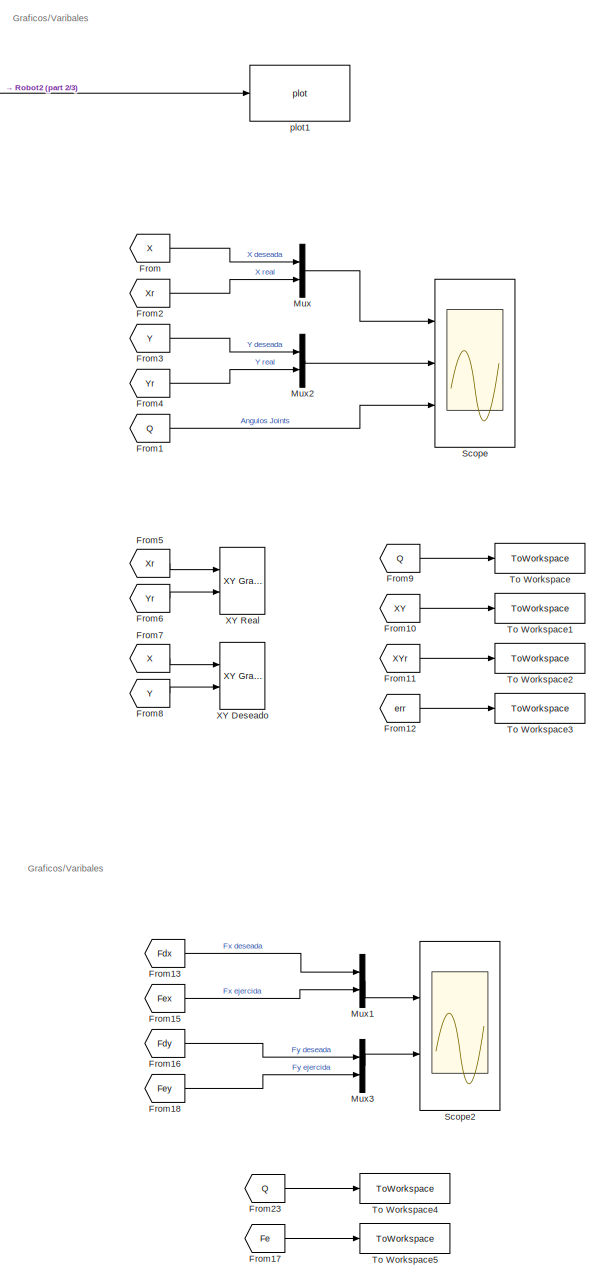
[diagram: root canvas - part 1/3, right side, full height]
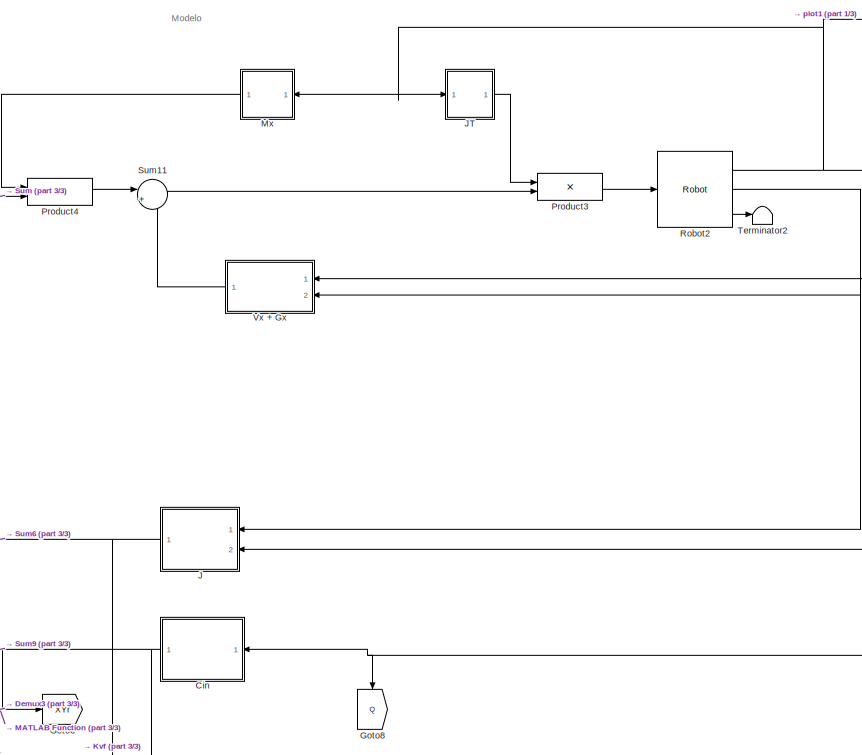
[diagram: root canvas - part 2/3, top center region]
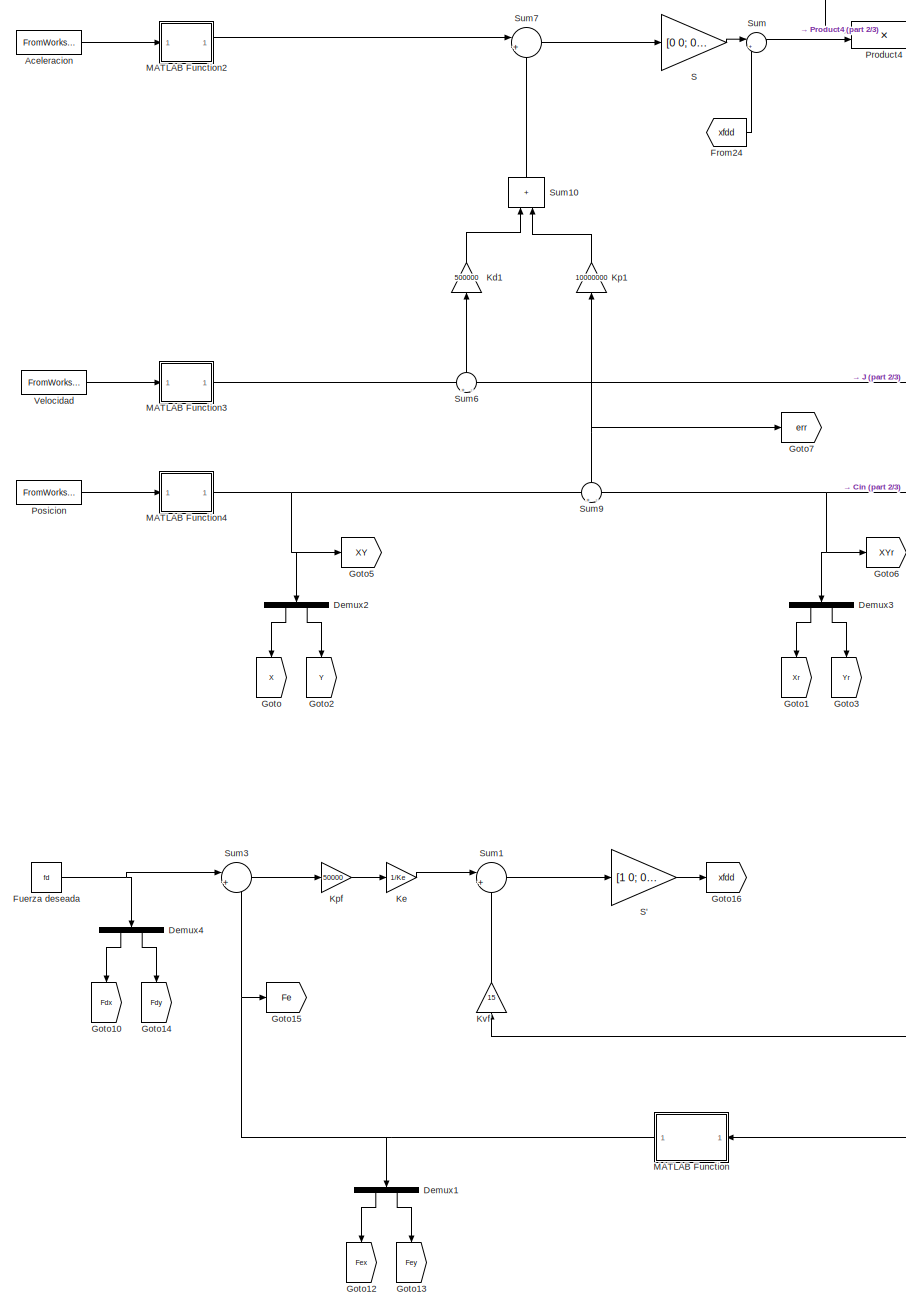
[diagram: root canvas - part 3/3, left side, full height]
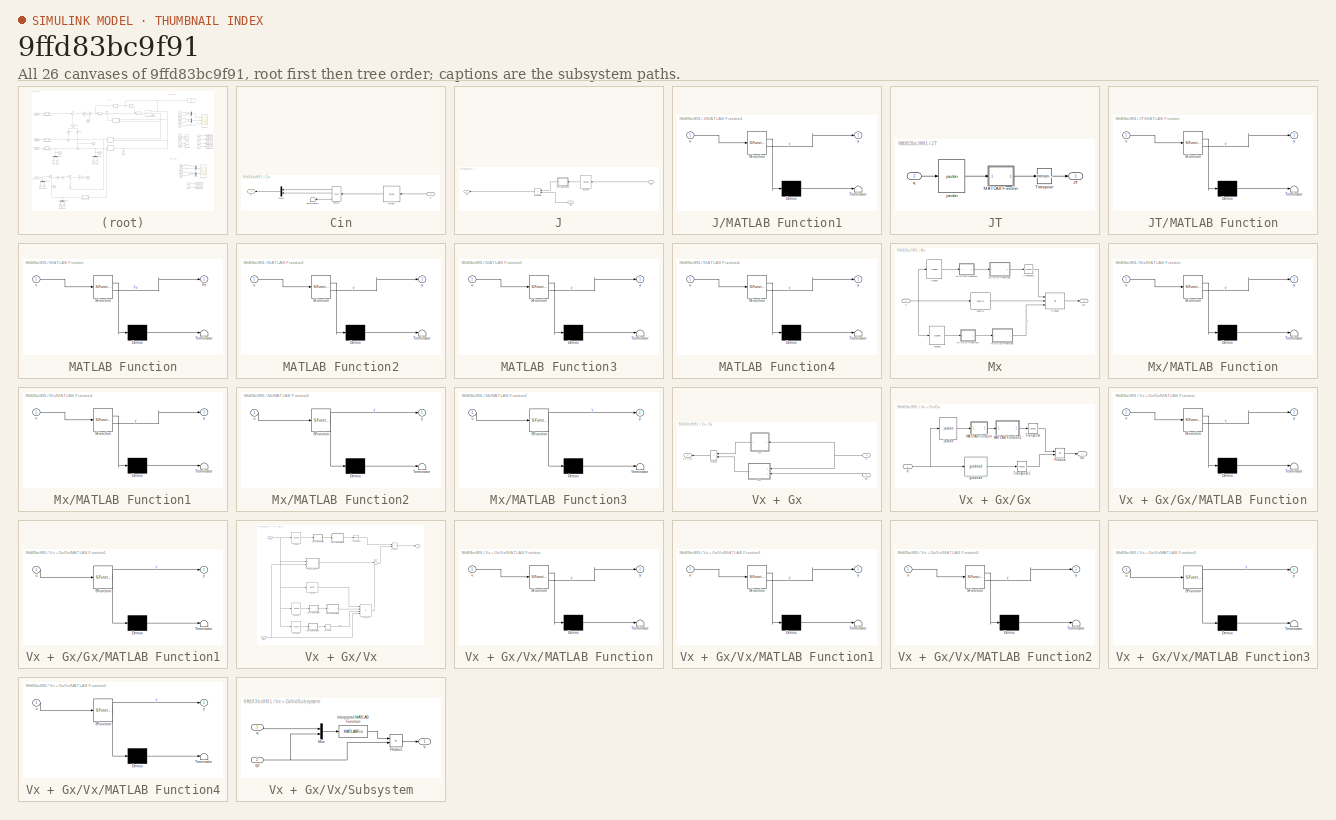
[diagram: thumbnail index - all 26 canvases of the model, root first then tree order]
MODEL slx_9ffd83bc9f91
KIND model
CONFIG AbsTol = auto
CONFIG EnableMultiTasking = off
CONFIG FixedStep = auto
CONFIG MaxStep = auto
CONFIG MinStep = auto
CONFIG RelTol = 1e-3
CONFIG SampleTimeConstraint = Unconstrained
CONFIG Solver = VariableStepAuto
CONFIG SolverName = VariableStepAuto
CONFIG StartTime = 0.0
CONFIG StopTime = 10
BLOCK [FromWorkspace] Aceleracion
  OutputAfterFinalValue = Holding final value
  SampleTime = -1
  VariableName = acc
BLOCK [SubSystem] Cin
  NameLocation = top
  Ports = [1, 1]
  RequestExecContextInheritance = off
BLOCK [Mux] Cin/Mux1
  DisplayOption = bar
  Inputs = 2
  NameLocation = top
  Ports = [2, 1]
BLOCK [Reference] Cin/T2xyz1  REF=roblocks/Toolbox/T2xyz  (lib defined in mdl_2a292b13c81b, mdl_69400f8cfe22, +12 more)
  NameLocation = top
  Ports = [1, 3]
  SourceBlock = roblocks/Toolbox/T2xyz
BLOCK [Terminator] Cin/Terminator3
  NameLocation = top
BLOCK [Reference] Cin/fkine1  REF=roblocks/Arm/fkine  (lib defined in mdl_2a292b13c81b, mdl_69400f8cfe22, +12 more)
  NameLocation = top
  Ports = [1, 1]
  SourceBlock = roblocks/Arm/fkine
BLOCK [Inport] Cin/q
  NameLocation = top
BLOCK [Outport] Cin/x
BLOCK [Demux] Demux1
  NameLocation = left
  Outputs = 2
  Ports = [1, 2]
BLOCK [Demux] Demux2
  NameLocation = left
  Outputs = 2
  Ports = [1, 2]
BLOCK [Demux] Demux3
  NameLocation = left
  Outputs = 2
  Ports = [1, 2]
BLOCK [Demux] Demux4
  NameLocation = left
  Outputs = 2
  Ports = [1, 2]
BLOCK [From] From
  GotoTag = X
BLOCK [From] From1
  GotoTag = Q
BLOCK [From] From10
  GotoTag = XY
BLOCK [From] From11
  GotoTag = XYr
BLOCK [From] From12
  GotoTag = err
BLOCK [From] From13
  GotoTag = Fdx
BLOCK [From] From15
  GotoTag = Fex
BLOCK [From] From16
  GotoTag = Fdy
BLOCK [From] From17
  GotoTag = Fe
BLOCK [From] From18
  GotoTag = Fey
BLOCK [From] From2
  GotoTag = Xr
BLOCK [From] From23
  GotoTag = Q
BLOCK [From] From24
  GotoTag = xfdd
BLOCK [From] From3
  GotoTag = Y
BLOCK [From] From4
  GotoTag = Yr
BLOCK [From] From5
  GotoTag = Xr
BLOCK [From] From6
  GotoTag = Yr
BLOCK [From] From7
  GotoTag = X
BLOCK [From] From8
  GotoTag = Y
BLOCK [From] From9
  GotoTag = Q
BLOCK [Constant] Fuerza deseada
  Value = fd
BLOCK [Goto] Goto
  GotoTag = X
  IconDisplay = Tag and signal name
  NameLocation = left
BLOCK [Goto] Goto1
  GotoTag = Xr
  IconDisplay = Tag and signal name
  NameLocation = left
BLOCK [Goto] Goto10
  GotoTag = Fdx
  IconDisplay = Tag and signal name
  NameLocation = left
BLOCK [Goto] Goto12
  GotoTag = Fex
  IconDisplay = Tag and signal name
  NameLocation = left
BLOCK [Goto] Goto13
  GotoTag = Fey
  IconDisplay = Tag and signal name
  NameLocation = left
BLOCK [Goto] Goto14
  GotoTag = Fdy
  IconDisplay = Tag and signal name
  NameLocation = left
BLOCK [Goto] Goto15
  GotoTag = Fe
BLOCK [Goto] Goto16
  GotoTag = xfdd
BLOCK [Goto] Goto2
  GotoTag = Y
  IconDisplay = Tag and signal name
  NameLocation = left
BLOCK [Goto] Goto3
  GotoTag = Yr
  IconDisplay = Tag and signal name
  NameLocation = left
BLOCK [Goto] Goto5
  GotoTag = XY
BLOCK [Goto] Goto6
  GotoTag = XYr
  IconDisplay = Tag and signal name
BLOCK [Goto] Goto7
  GotoTag = err
  IconDisplay = Tag and signal name
BLOCK [Goto] Goto8
  GotoTag = Q
  NameLocation = left
BLOCK [SubSystem] J
  NameLocation = top
  Ports = [2, 1]
  RequestExecContextInheritance = off
BLOCK [SubSystem] J/MATLAB Function1
  ErrorFcn = Stateflow.Translate.translate
  NameLocation = top
  PermitHierarchicalResolution = ExplicitOnly
  Ports = [1, 1]
  RequestExecContextInheritance = off
  SFBlockType = MATLAB Function
  TreatAsAtomicUnit = on
BLOCK [Demux] J/MATLAB Function1/ Demux 
  Outputs = 1
  Ports = [1, 1]
BLOCK [S-Function] J/MATLAB Function1/ SFunction 
  EnableBusSupport = on
  FunctionName = sf_sfun
  PortCounts = [1 2]
  Ports = [1, 2]
  SFcnIsStateOwnerBlock = off
  SFunctionDeploymentMode = off
  Tag = Stateflow S-Function 27
BLOCK [Terminator] J/MATLAB Function1/ Terminator 
BLOCK [Inport] J/MATLAB Function1/u
BLOCK [Outport] J/MATLAB Function1/y
BLOCK [Product] J/Product5
  Multiplication = Matrix(*)
  NameLocation = top
  Ports = [2, 1]
BLOCK [Reference] J/jacobn1  REF=roblocks/Arm/jacobn  (lib defined in mdl_2a292b13c81b, mdl_69400f8cfe22, +12 more)
  NameLocation = top
  Ports = [1, 1]
  SourceBlock = roblocks/Arm/jacobn
BLOCK [Inport] J/q
  NameLocation = top
  Port = 2
BLOCK [Inport] J/qd
  NameLocation = top
BLOCK [Outport] J/xd
BLOCK [SubSystem] JT
  Ports = [1, 1]
  RequestExecContextInheritance = off
BLOCK [Outport] JT/JT
BLOCK [SubSystem] JT/MATLAB Function
  ErrorFcn = Stateflow.Translate.translate
  PermitHierarchicalResolution = ExplicitOnly
  Ports = [1, 1]
  RequestExecContextInheritance = off
  SFBlockType = MATLAB Function
  TreatAsAtomicUnit = on
BLOCK [Demux] JT/MATLAB Function/ Demux 
  Outputs = 1
  Ports = [1, 1]
BLOCK [S-Function] JT/MATLAB Function/ SFunction 
  EnableBusSupport = on
  FunctionName = sf_sfun
  PortCounts = [1 2]
  Ports = [1, 2]
  SFcnIsStateOwnerBlock = off
  SFunctionDeploymentMode = off
  Tag = Stateflow S-Function 17
BLOCK [Terminator] JT/MATLAB Function/ Terminator 
BLOCK [Inport] JT/MATLAB Function/u
BLOCK [Outport] JT/MATLAB Function/y
BLOCK [Math] JT/Transpose
  Operator = transpose
  Ports = [1, 1]
BLOCK [Reference] JT/jacobn  REF=roblocks/Arm/jacobn  (lib defined in mdl_2a292b13c81b, mdl_69400f8cfe22, +12 more)
  Ports = [1, 1]
  SourceBlock = roblocks/Arm/jacobn
BLOCK [Inport] JT/q
BLOCK [Gain] Kd1
  Gain = 500000
  Multiplication = Matrix(K*u)
  NameLocation = right
  OutDataTypeStr = Inherit: Same as input
  ParamDataTypeStr = Inherit: Same as input
  SaturateOnIntegerOverflow = on
BLOCK [Gain] Ke
  Gain = 1/Ke
  Multiplication = Matrix(K*u)
  OutDataTypeStr = Inherit: Same as input
  ParamDataTypeStr = Inherit: Same as input
  SaturateOnIntegerOverflow = on
BLOCK [Gain] Kp1
  Gain = 10000000
  Multiplication = Matrix(K*u)
  NameLocation = right
  OutDataTypeStr = Inherit: Same as input
  ParamDataTypeStr = Inherit: Same as input
  SaturateOnIntegerOverflow = on
BLOCK [Gain] Kpf
  Gain = 50000
  OutDataTypeStr = Inherit: Same as input
  ParamDataTypeStr = Inherit: Same as input
  SaturateOnIntegerOverflow = on
BLOCK [Gain] Kvf
  Gain = 15
  NameLocation = right
  OutDataTypeStr = Inherit: Same as input
  ParamDataTypeStr = Inherit: Same as input
  SaturateOnIntegerOverflow = on
BLOCK [SubSystem] MATLAB Function
  ErrorFcn = Stateflow.Translate.translate
  NameLocation = top
  PermitHierarchicalResolution = ExplicitOnly
  Ports = [1, 1]
  RequestExecContextInheritance = off
  SFBlockType = MATLAB Function
  TreatAsAtomicUnit = on
BLOCK [Demux] MATLAB Function/ Demux 
  Outputs = 1
  Ports = [1, 1]
BLOCK [S-Function] MATLAB Function/ SFunction 
  EnableBusSupport = on
  FunctionName = sf_sfun
  PortCounts = [1 2]
  Ports = [1, 2]
  SFcnIsStateOwnerBlock = off
  SFunctionDeploymentMode = off
  Tag = Stateflow S-Function 3
BLOCK [Terminator] MATLAB Function/ Terminator 
BLOCK [Outport] MATLAB Function/Fe
BLOCK [Inport] MATLAB Function/x
BLOCK [SubSystem] MATLAB Function2
  ErrorFcn = Stateflow.Translate.translate
  PermitHierarchicalResolution = ExplicitOnly
  Ports = [1, 1]
  RequestExecContextInheritance = off
  SFBlockType = MATLAB Function
  TreatAsAtomicUnit = on
BLOCK [Demux] MATLAB Function2/ Demux 
  Outputs = 1
  Ports = [1, 1]
BLOCK [S-Function] MATLAB Function2/ SFunction 
  EnableBusSupport = on
  FunctionName = sf_sfun
  PortCounts = [1 2]
  Ports = [1, 2]
  SFcnIsStateOwnerBlock = off
  SFunctionDeploymentMode = off
  Tag = Stateflow S-Function 15
BLOCK [Terminator] MATLAB Function2/ Terminator 
BLOCK [Inport] MATLAB Function2/u
BLOCK [Outport] MATLAB Function2/y
BLOCK [SubSystem] MATLAB Function3
  ErrorFcn = Stateflow.Translate.translate
  PermitHierarchicalResolution = ExplicitOnly
  Ports = [1, 1]
  RequestExecContextInheritance = off
  SFBlockType = MATLAB Function
  TreatAsAtomicUnit = on
BLOCK [Demux] MATLAB Function3/ Demux 
  Outputs = 1
  Ports = [1, 1]
BLOCK [S-Function] MATLAB Function3/ SFunction 
  EnableBusSupport = on
  FunctionName = sf_sfun
  PortCounts = [1 2]
  Ports = [1, 2]
  SFcnIsStateOwnerBlock = off
  SFunctionDeploymentMode = off
  Tag = Stateflow S-Function 18
BLOCK [Terminator] MATLAB Function3/ Terminator 
BLOCK [Inport] MATLAB Function3/u
BLOCK [Outport] MATLAB Function3/y
BLOCK [SubSystem] MATLAB Function4
  ErrorFcn = Stateflow.Translate.translate
  PermitHierarchicalResolution = ExplicitOnly
  Ports = [1, 1]
  RequestExecContextInheritance = off
  SFBlockType = MATLAB Function
  TreatAsAtomicUnit = on
BLOCK [Demux] MATLAB Function4/ Demux 
  Outputs = 1
  Ports = [1, 1]
BLOCK [S-Function] MATLAB Function4/ SFunction 
  EnableBusSupport = on
  FunctionName = sf_sfun
  PortCounts = [1 2]
  Ports = [1, 2]
  SFcnIsStateOwnerBlock = off
  SFunctionDeploymentMode = off
  Tag = Stateflow S-Function 19
BLOCK [Terminator] MATLAB Function4/ Terminator 
BLOCK [Inport] MATLAB Function4/u
BLOCK [Outport] MATLAB Function4/y
BLOCK [Mux] Mux
  DisplayOption = bar
  Inputs = 2
  Ports = [2, 1]
BLOCK [Mux] Mux1
  DisplayOption = bar
  Inputs = 2
  Ports = [2, 1]
BLOCK [Mux] Mux2
  DisplayOption = bar
  Inputs = 2
  Ports = [2, 1]
BLOCK [Mux] Mux3
  DisplayOption = bar
  Inputs = 2
  Ports = [2, 1]
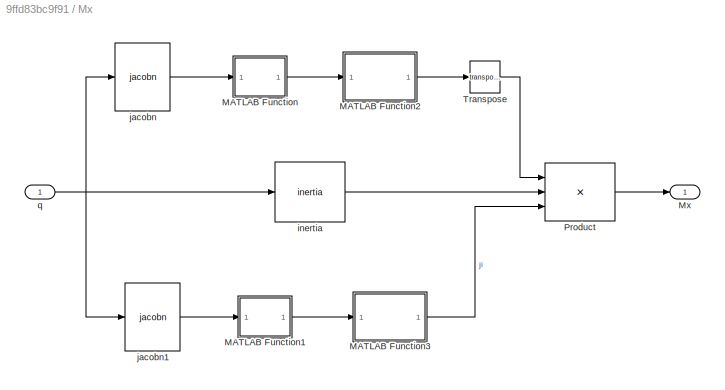
BLOCK [SubSystem] Mx
  NameLocation = top
  Ports = [1, 1]
  RequestExecContextInheritance = off
BLOCK [SubSystem] Mx/MATLAB Function
  ErrorFcn = Stateflow.Translate.translate
  PermitHierarchicalResolution = ExplicitOnly
  Ports = [1, 1]
  RequestExecContextInheritance = off
  SFBlockType = MATLAB Function
  TreatAsAtomicUnit = on
BLOCK [Demux] Mx/MATLAB Function/ Demux 
  Outputs = 1
  Ports = [1, 1]
BLOCK [S-Function] Mx/MATLAB Function/ SFunction 
  EnableBusSupport = on
  FunctionName = sf_sfun
  PortCounts = [1 2]
  Ports = [1, 2]
  SFcnIsStateOwnerBlock = off
  SFunctionDeploymentMode = off
  Tag = Stateflow S-Function 20
BLOCK [Terminator] Mx/MATLAB Function/ Terminator 
BLOCK [Inport] Mx/MATLAB Function/u
BLOCK [Outport] Mx/MATLAB Function/y
BLOCK [SubSystem] Mx/MATLAB Function1
  ErrorFcn = Stateflow.Translate.translate
  PermitHierarchicalResolution = ExplicitOnly
  Ports = [1, 1]
  RequestExecContextInheritance = off
  SFBlockType = MATLAB Function
  TreatAsAtomicUnit = on
BLOCK [Demux] Mx/MATLAB Function1/ Demux 
  Outputs = 1
  Ports = [1, 1]
BLOCK [S-Function] Mx/MATLAB Function1/ SFunction 
  EnableBusSupport = on
  FunctionName = sf_sfun
  PortCounts = [1 2]
  Ports = [1, 2]
  SFcnIsStateOwnerBlock = off
  SFunctionDeploymentMode = off
  Tag = Stateflow S-Function 21
BLOCK [Terminator] Mx/MATLAB Function1/ Terminator 
BLOCK [Inport] Mx/MATLAB Function1/u
BLOCK [Outport] Mx/MATLAB Function1/y
BLOCK [SubSystem] Mx/MATLAB Function2
  ErrorFcn = Stateflow.Translate.translate
  PermitHierarchicalResolution = ExplicitOnly
  Ports = [1, 1]
  RequestExecContextInheritance = off
  SFBlockType = MATLAB Function
  TreatAsAtomicUnit = on
BLOCK [Demux] Mx/MATLAB Function2/ Demux 
  Outputs = 1
  Ports = [1, 1]
BLOCK [S-Function] Mx/MATLAB Function2/ SFunction 
  EnableBusSupport = on
  FunctionName = sf_sfun
  PortCounts = [1 2]
  Ports = [1, 2]
  SFcnIsStateOwnerBlock = off
  SFunctionDeploymentMode = off
  Tag = Stateflow S-Function 22
BLOCK [Terminator] Mx/MATLAB Function2/ Terminator 
BLOCK [Inport] Mx/MATLAB Function2/u
BLOCK [Outport] Mx/MATLAB Function2/y
BLOCK [SubSystem] Mx/MATLAB Function3
  ErrorFcn = Stateflow.Translate.translate
  PermitHierarchicalResolution = ExplicitOnly
  Ports = [1, 1]
  RequestExecContextInheritance = off
  SFBlockType = MATLAB Function
  TreatAsAtomicUnit = on
BLOCK [Demux] Mx/MATLAB Function3/ Demux 
  Outputs = 1
  Ports = [1, 1]
BLOCK [S-Function] Mx/MATLAB Function3/ SFunction 
  EnableBusSupport = on
  FunctionName = sf_sfun
  PortCounts = [1 2]
  Ports = [1, 2]
  SFcnIsStateOwnerBlock = off
  SFunctionDeploymentMode = off
  Tag = Stateflow S-Function 23
BLOCK [Terminator] Mx/MATLAB Function3/ Terminator 
BLOCK [Inport] Mx/MATLAB Function3/u
BLOCK [Outport] Mx/MATLAB Function3/y
BLOCK [Outport] Mx/Mx
BLOCK [Product] Mx/Product
  Inputs = 3
  Multiplication = Matrix(*)
  Ports = [3, 1]
BLOCK [Math] Mx/Transpose
  Operator = transpose
  Ports = [1, 1]
BLOCK [Reference] Mx/inertia  REF=roblocks/Arm/inertia  (lib defined in mdl_2a292b13c81b, mdl_69400f8cfe22, +12 more)
  Ports = [1, 1]
  SourceBlock = roblocks/Arm/inertia
BLOCK [Reference] Mx/jacobn  REF=roblocks/Arm/jacobn  (lib defined in mdl_2a292b13c81b, mdl_69400f8cfe22, +12 more)
  Ports = [1, 1]
  SourceBlock = roblocks/Arm/jacobn
BLOCK [Reference] Mx/jacobn1  REF=roblocks/Arm/jacobn  (lib defined in mdl_2a292b13c81b, mdl_69400f8cfe22, +12 more)
  Ports = [1, 1]
  SourceBlock = roblocks/Arm/jacobn
BLOCK [Inport] Mx/q
BLOCK [FromWorkspace] Posicion
  OutputAfterFinalValue = Holding final value
  SampleTime = -1
  VariableName = pos
BLOCK [Product] Product3
  Multiplication = Matrix(*)
  Ports = [2, 1]
BLOCK [Product] Product4
  Multiplication = Matrix(*)
  Ports = [2, 1]
BLOCK [Reference] Robot2  REF=roblocks/Arm/Robot  (lib defined in mdl_2a292b13c81b, mdl_69400f8cfe22, +12 more)
  Ports = [1, 3]
  SourceBlock = roblocks/Arm/Robot
BLOCK [Gain] S
  Gain = [0 0; 0 1]
  Multiplication = Matrix(K*u)
BLOCK [Gain] S'
  Gain = [1 0; 0 0]
  Multiplication = Matrix(K*u)
BLOCK [Scope] Scope
  Floating = off
  NumInputPorts = 3
  Ports = [3]
  ScopeSpecificationString = Simulink.scopes.TimeScopeBlockCfg('CurrentConfiguration', extmgr.ConfigurationSet(extmgr.Configuration('Core','General UI',true,'FigureColor',[1 1 1]),extmgr.Configuration('Core','Source UI',true),extmgr.Configuration('Sources','WiredSimulink',true),extmgr.Configuration('Visuals','Time Domain',true,'SerializedDisplays',{struct('MinYLimReal','-0.12625','MaxYLimReal','2.13626','YLabelReal','','MinYL...<+3433ch>
BLOCK [Scope] Scope2
  Floating = off
  NumInputPorts = 2
  Ports = [2]
  ScopeSpecificationString = Simulink.scopes.TimeScopeBlockCfg('CurrentConfiguration', extmgr.ConfigurationSet(extmgr.Configuration('Core','General UI',true,'FigureColor',[1 1 1]),extmgr.Configuration('Core','Source UI',true),extmgr.Configuration('Sources','WiredSimulink',true,'DataLoggingVariableName','ScopeData2'),extmgr.Configuration('Visuals','Time Domain',true,'SerializedDisplays',{struct('MinYLimReal','-1.62051','MaxYLi...<+2462ch>
BLOCK [Sum] Sum
  Inputs = |++
  Ports = [2, 1]
BLOCK [Sum] Sum1
  InputSameDT = on
  Inputs = |+-
  OutDataTypeStr = Inherit: Same as first input
  Ports = [2, 1]
  SaturateOnIntegerOverflow = on
BLOCK [Sum] Sum10
  IconShape = rectangular
  NameLocation = right
  Ports = [2, 1]
  SaturateOnIntegerOverflow = on
BLOCK [Sum] Sum11
  InputSameDT = on
  Inputs = |++
  OutDataTypeStr = Inherit: Same as first input
  Ports = [2, 1]
  SaturateOnIntegerOverflow = on
BLOCK [Sum] Sum3
  InputSameDT = on
  Inputs = |+-
  OutDataTypeStr = Inherit: Same as first input
  Ports = [2, 1]
  SaturateOnIntegerOverflow = on
BLOCK [Sum] Sum6
  InputSameDT = on
  Inputs = +|-
  NameLocation = right
  OutDataTypeStr = Inherit: Same as first input
  Ports = [2, 1]
  SaturateOnIntegerOverflow = on
BLOCK [Sum] Sum7
  InputSameDT = on
  Inputs = |++
  OutDataTypeStr = Inherit: Same as first input
  Ports = [2, 1]
  SaturateOnIntegerOverflow = on
BLOCK [Sum] Sum9
  InputSameDT = on
  Inputs = +|-
  NameLocation = right
  OutDataTypeStr = Inherit: Same as first input
  Ports = [2, 1]
  SaturateOnIntegerOverflow = on
BLOCK [Terminator] Terminator2
BLOCK [ToWorkspace] To Workspace
  FixptAsFi = on
  MaxDataPoints = inf
  Ports = [1]
  SampleTime = -1
  SaveFormat = Timeseries
  VariableName = Q_joints
BLOCK [ToWorkspace] To Workspace1
  FixptAsFi = on
  MaxDataPoints = inf
  Ports = [1]
  SampleTime = -1
  SaveFormat = Timeseries
  VariableName = X_deseado
BLOCK [ToWorkspace] To Workspace2
  FixptAsFi = on
  MaxDataPoints = inf
  Ports = [1]
  SampleTime = -1
  SaveFormat = Timeseries
  VariableName = X_real
BLOCK [ToWorkspace] To Workspace3
  FixptAsFi = on
  MaxDataPoints = inf
  Ports = [1]
  SampleTime = -1
  SaveFormat = Timeseries
  VariableName = error
BLOCK [ToWorkspace] To Workspace4
  FixptAsFi = on
  MaxDataPoints = inf
  Ports = [1]
  SampleTime = -1
  SaveFormat = Timeseries
  VariableName = Q_joints1
BLOCK [ToWorkspace] To Workspace5
  FixptAsFi = on
  MaxDataPoints = inf
  Ports = [1]
  SampleTime = -1
  SaveFormat = Timeseries
  VariableName = F_ejercida
BLOCK [FromWorkspace] Velocidad
  OutputAfterFinalValue = Holding final value
  SampleTime = -1
  VariableName = vel
BLOCK [SubSystem] Vx + Gx
  NameLocation = top
  Ports = [2, 1]
  RequestExecContextInheritance = off
BLOCK [SubSystem] Vx + Gx/Gx
  NameLocation = top
  Ports = [1, 1]
  RequestExecContextInheritance = off
BLOCK [Outport] Vx + Gx/Gx/Gx
BLOCK [SubSystem] Vx + Gx/Gx/MATLAB Function
  ErrorFcn = Stateflow.Translate.translate
  PermitHierarchicalResolution = ExplicitOnly
  Ports = [1, 1]
  RequestExecContextInheritance = off
  SFBlockType = MATLAB Function
  TreatAsAtomicUnit = on
BLOCK [Demux] Vx + Gx/Gx/MATLAB Function/ Demux 
  Outputs = 1
  Ports = [1, 1]
BLOCK [S-Function] Vx + Gx/Gx/MATLAB Function/ SFunction 
  EnableBusSupport = on
  FunctionName = sf_sfun
  PortCounts = [1 2]
  Ports = [1, 2]
  SFcnIsStateOwnerBlock = off
  SFunctionDeploymentMode = off
  Tag = Stateflow S-Function 25
BLOCK [Terminator] Vx + Gx/Gx/MATLAB Function/ Terminator 
BLOCK [Inport] Vx + Gx/Gx/MATLAB Function/u
BLOCK [Outport] Vx + Gx/Gx/MATLAB Function/y
BLOCK [SubSystem] Vx + Gx/Gx/MATLAB Function1
  ErrorFcn = Stateflow.Translate.translate
  PermitHierarchicalResolution = ExplicitOnly
  Ports = [1, 1]
  RequestExecContextInheritance = off
  SFBlockType = MATLAB Function
  TreatAsAtomicUnit = on
BLOCK [Demux] Vx + Gx/Gx/MATLAB Function1/ Demux 
  Outputs = 1
  Ports = [1, 1]
BLOCK [S-Function] Vx + Gx/Gx/MATLAB Function1/ SFunction 
  EnableBusSupport = on
  FunctionName = sf_sfun
  PortCounts = [1 2]
  Ports = [1, 2]
  SFcnIsStateOwnerBlock = off
  SFunctionDeploymentMode = off
  Tag = Stateflow S-Function 26
BLOCK [Terminator] Vx + Gx/Gx/MATLAB Function1/ Terminator 
BLOCK [Inport] Vx + Gx/Gx/MATLAB Function1/u
BLOCK [Outport] Vx + Gx/Gx/MATLAB Function1/y
BLOCK [Product] Vx + Gx/Gx/Product
  Multiplication = Matrix(*)
  Ports = [2, 1]
BLOCK [Math] Vx + Gx/Gx/Transpose
  Operator = transpose
  Ports = [1, 1]
BLOCK [Math] Vx + Gx/Gx/Transpose1
  Operator = transpose
  Ports = [1, 1]
BLOCK [Reference] Vx + Gx/Gx/gravload  REF=roblocks/Arm/gravload  (lib defined in mdl_2a292b13c81b, mdl_69400f8cfe22, +12 more)
  Ports = [1, 1]
  SourceBlock = roblocks/Arm/gravload
BLOCK [Reference] Vx + Gx/Gx/jacobn  REF=roblocks/Arm/jacobn  (lib defined in mdl_2a292b13c81b, mdl_69400f8cfe22, +12 more)
  Ports = [1, 1]
  SourceBlock = roblocks/Arm/jacobn
BLOCK [Inport] Vx + Gx/Gx/q
BLOCK [Sum] Vx + Gx/Sum8
  IconShape = rectangular
  NameLocation = top
  Ports = [2, 1]
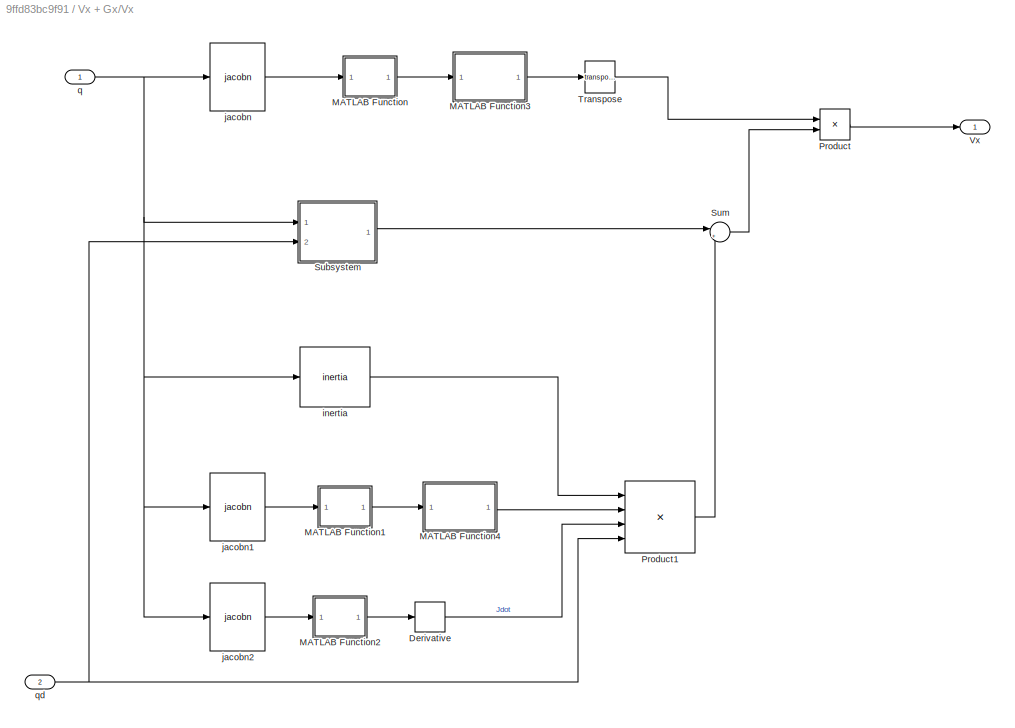
BLOCK [SubSystem] Vx + Gx/Vx
  NameLocation = top
  Ports = [2, 1]
  RequestExecContextInheritance = off
BLOCK [Outport] Vx + Gx/Vx + Gx
  NameLocation = top
BLOCK [Derivative] Vx + Gx/Vx/Derivative
BLOCK [SubSystem] Vx + Gx/Vx/MATLAB Function
  ErrorFcn = Stateflow.Translate.translate
  PermitHierarchicalResolution = ExplicitOnly
  Ports = [1, 1]
  RequestExecContextInheritance = off
  SFBlockType = MATLAB Function
  TreatAsAtomicUnit = on
BLOCK [Demux] Vx + Gx/Vx/MATLAB Function/ Demux 
  Outputs = 1
  Ports = [1, 1]
BLOCK [S-Function] Vx + Gx/Vx/MATLAB Function/ SFunction 
  EnableBusSupport = on
  FunctionName = sf_sfun
  PortCounts = [1 2]
  Ports = [1, 2]
  SFcnIsStateOwnerBlock = off
  SFunctionDeploymentMode = off
  Tag = Stateflow S-Function 28
BLOCK [Terminator] Vx + Gx/Vx/MATLAB Function/ Terminator 
BLOCK [Inport] Vx + Gx/Vx/MATLAB Function/u
BLOCK [Outport] Vx + Gx/Vx/MATLAB Function/y
BLOCK [SubSystem] Vx + Gx/Vx/MATLAB Function1
  ErrorFcn = Stateflow.Translate.translate
  PermitHierarchicalResolution = ExplicitOnly
  Ports = [1, 1]
  RequestExecContextInheritance = off
  SFBlockType = MATLAB Function
  TreatAsAtomicUnit = on
BLOCK [Demux] Vx + Gx/Vx/MATLAB Function1/ Demux 
  Outputs = 1
  Ports = [1, 1]
BLOCK [S-Function] Vx + Gx/Vx/MATLAB Function1/ SFunction 
  EnableBusSupport = on
  FunctionName = sf_sfun
  PortCounts = [1 2]
  Ports = [1, 2]
  SFcnIsStateOwnerBlock = off
  SFunctionDeploymentMode = off
  Tag = Stateflow S-Function 29
BLOCK [Terminator] Vx + Gx/Vx/MATLAB Function1/ Terminator 
BLOCK [Inport] Vx + Gx/Vx/MATLAB Function1/u
BLOCK [Outport] Vx + Gx/Vx/MATLAB Function1/y
BLOCK [SubSystem] Vx + Gx/Vx/MATLAB Function2
  ErrorFcn = Stateflow.Translate.translate
  PermitHierarchicalResolution = ExplicitOnly
  Ports = [1, 1]
  RequestExecContextInheritance = off
  SFBlockType = MATLAB Function
  TreatAsAtomicUnit = on
BLOCK [Demux] Vx + Gx/Vx/MATLAB Function2/ Demux 
  Outputs = 1
  Ports = [1, 1]
BLOCK [S-Function] Vx + Gx/Vx/MATLAB Function2/ SFunction 
  EnableBusSupport = on
  FunctionName = sf_sfun
  PortCounts = [1 2]
  Ports = [1, 2]
  SFcnIsStateOwnerBlock = off
  SFunctionDeploymentMode = off
  Tag = Stateflow S-Function 31
BLOCK [Terminator] Vx + Gx/Vx/MATLAB Function2/ Terminator 
BLOCK [Inport] Vx + Gx/Vx/MATLAB Function2/u
BLOCK [Outport] Vx + Gx/Vx/MATLAB Function2/y
BLOCK [SubSystem] Vx + Gx/Vx/MATLAB Function3
  ErrorFcn = Stateflow.Translate.translate
  PermitHierarchicalResolution = ExplicitOnly
  Ports = [1, 1]
  RequestExecContextInheritance = off
  SFBlockType = MATLAB Function
  TreatAsAtomicUnit = on
BLOCK [Demux] Vx + Gx/Vx/MATLAB Function3/ Demux 
  Outputs = 1
  Ports = [1, 1]
BLOCK [S-Function] Vx + Gx/Vx/MATLAB Function3/ SFunction 
  EnableBusSupport = on
  FunctionName = sf_sfun
  PortCounts = [1 2]
  Ports = [1, 2]
  SFcnIsStateOwnerBlock = off
  SFunctionDeploymentMode = off
  Tag = Stateflow S-Function 32
BLOCK [Terminator] Vx + Gx/Vx/MATLAB Function3/ Terminator 
BLOCK [Inport] Vx + Gx/Vx/MATLAB Function3/u
BLOCK [Outport] Vx + Gx/Vx/MATLAB Function3/y
BLOCK [SubSystem] Vx + Gx/Vx/MATLAB Function4
  ErrorFcn = Stateflow.Translate.translate
  PermitHierarchicalResolution = ExplicitOnly
  Ports = [1, 1]
  RequestExecContextInheritance = off
  SFBlockType = MATLAB Function
  TreatAsAtomicUnit = on
BLOCK [Demux] Vx + Gx/Vx/MATLAB Function4/ Demux 
  Outputs = 1
  Ports = [1, 1]
BLOCK [S-Function] Vx + Gx/Vx/MATLAB Function4/ SFunction 
  EnableBusSupport = on
  FunctionName = sf_sfun
  PortCounts = [1 2]
  Ports = [1, 2]
  SFcnIsStateOwnerBlock = off
  SFunctionDeploymentMode = off
  Tag = Stateflow S-Function 33
BLOCK [Terminator] Vx + Gx/Vx/MATLAB Function4/ Terminator 
BLOCK [Inport] Vx + Gx/Vx/MATLAB Function4/u
BLOCK [Outport] Vx + Gx/Vx/MATLAB Function4/y
BLOCK [Product] Vx + Gx/Vx/Product
  Multiplication = Matrix(*)
  Ports = [2, 1]
BLOCK [Product] Vx + Gx/Vx/Product1
  Inputs = 4
  Multiplication = Matrix(*)
  Ports = [4, 1]
BLOCK [SubSystem] Vx + Gx/Vx/Subsystem
  Ports = [2, 1]
  RequestExecContextInheritance = off
BLOCK [MATLABFcn] Vx + Gx/Vx/Subsystem/Interpreted MATLAB Function
  MATLABFcn = coriolis(Robot,u')
  Output1D = off
  OutputDimensions = [2,2]
  Ports = [1, 1]
BLOCK [Mux] Vx + Gx/Vx/Subsystem/Mux
  DisplayOption = bar
  Inputs = 2
  Ports = [2, 1]
BLOCK [Product] Vx + Gx/Vx/Subsystem/Product
  Multiplication = Matrix(*)
  Ports = [2, 1]
BLOCK [Outport] Vx + Gx/Vx/Subsystem/V
BLOCK [Inport] Vx + Gx/Vx/Subsystem/q
BLOCK [Inport] Vx + Gx/Vx/Subsystem/qd
  Port = 2
BLOCK [Sum] Vx + Gx/Vx/Sum
  Inputs = |+-
  Ports = [2, 1]
BLOCK [Math] Vx + Gx/Vx/Transpose
  Operator = transpose
  Ports = [1, 1]
BLOCK [Outport] Vx + Gx/Vx/Vx
BLOCK [Reference] Vx + Gx/Vx/inertia  REF=roblocks/Arm/inertia  (lib defined in mdl_2a292b13c81b, mdl_69400f8cfe22, +12 more)
  Ports = [1, 1]
  SourceBlock = roblocks/Arm/inertia
BLOCK [Reference] Vx + Gx/Vx/jacobn  REF=roblocks/Arm/jacobn  (lib defined in mdl_2a292b13c81b, mdl_69400f8cfe22, +12 more)
  Ports = [1, 1]
  SourceBlock = roblocks/Arm/jacobn
BLOCK [Reference] Vx + Gx/Vx/jacobn1  REF=roblocks/Arm/jacobn  (lib defined in mdl_2a292b13c81b, mdl_69400f8cfe22, +12 more)
  Ports = [1, 1]
  SourceBlock = roblocks/Arm/jacobn
BLOCK [Reference] Vx + Gx/Vx/jacobn2  REF=roblocks/Arm/jacobn  (lib defined in mdl_2a292b13c81b, mdl_69400f8cfe22, +12 more)
  Ports = [1, 1]
  SourceBlock = roblocks/Arm/jacobn
BLOCK [Inport] Vx + Gx/Vx/q
BLOCK [Inport] Vx + Gx/Vx/qd
  Port = 2
BLOCK [Inport] Vx + Gx/q
BLOCK [Inport] Vx + Gx/qd
  Port = 2
BLOCK [Reference] XY Deseado  REF=simulink/Sinks/XY Graph
  Ports = [2]
  SourceBlock = simulink/Sinks/XY Graph
  SourceProductBaseCode = SL
  SourceType = XY scope.
BLOCK [Reference] XY Real  REF=simulink/Sinks/XY Graph
  Ports = [2]
  SourceBlock = simulink/Sinks/XY Graph
  SourceProductBaseCode = SL
  SourceType = XY scope.
BLOCK [Reference] plot1  REF=roblocks/Arm/plot  (lib defined in mdl_2a292b13c81b, mdl_69400f8cfe22, +12 more)
  Ports = [1]
  SourceBlock = roblocks/Arm/plot
ANNOTATION (root): Graficos/Varibales
ANNOTATION (root): Modelo
LINE Aceleracion:1 -> MATLAB Function2:1
LINE Cin/Mux1:1 -> Cin/x:1
LINE Cin/T2xyz1:1 -> Cin/Mux1:1
LINE Cin/T2xyz1:2 -> Cin/Mux1:2
LINE Cin/T2xyz1:3 -> Cin/Terminator3:1
LINE Cin/fkine1:1 -> Cin/T2xyz1:1
LINE Cin/q:1 -> Cin/fkine1:1
NET Cin:1 -> Demux3:1, Goto6:1, MATLAB Function:1, Sum9:2
LINE Demux1:1 -> Goto12:1
LINE Demux1:2 -> Goto13:1
LINE Demux2:1 -> Goto:1
LINE Demux2:2 -> Goto2:1
LINE Demux3:1 -> Goto1:1
LINE Demux3:2 -> Goto3:1
LINE Demux4:1 -> Goto10:1
LINE Demux4:2 -> Goto14:1
LINE From10:1 -> To Workspace1:1
LINE From11:1 -> To Workspace2:1
LINE From12:1 -> To Workspace3:1
LINE From13:1 -> Mux1:1
LINE From15:1 -> Mux1:2
LINE From16:1 -> Mux3:1
LINE From17:1 -> To Workspace5:1
LINE From18:1 -> Mux3:2
LINE From1:1 -> Scope:3
LINE From23:1 -> To Workspace4:1
LINE From24:1 -> Sum:2
LINE From2:1 -> Mux:2
LINE From3:1 -> Mux2:1
LINE From4:1 -> Mux2:2
LINE From5:1 -> XY Real:1
LINE From6:1 -> XY Real:2
LINE From7:1 -> XY Deseado:1
LINE From8:1 -> XY Deseado:2
LINE From9:1 -> To Workspace:1
LINE From:1 -> Mux:1
NET Fuerza deseada:1 -> Demux4:1, Sum3:1
LINE J/MATLAB Function1:1 -> J/Product5:1
LINE J/Product5:1 -> J/xd:1
LINE J/jacobn1:1 -> J/MATLAB Function1:1
LINE J/q:1 -> J/jacobn1:1
LINE J/qd:1 -> J/Product5:2
NET J:1 -> Kvf:1, Sum6:2
LINE JT/MATLAB Function:1 -> JT/Transpose:1
LINE JT/Transpose:1 -> JT/JT:1
LINE JT/jacobn:1 -> JT/MATLAB Function:1
LINE JT/q:1 -> JT/jacobn:1
LINE JT:1 -> Product3:1
LINE Kd1:1 -> Sum10:1
LINE Ke:1 -> Sum1:1
LINE Kp1:1 -> Sum10:2
LINE Kpf:1 -> Ke:1
LINE Kvf:1 -> Sum1:2
LINE MATLAB Function2:1 -> Sum7:1
LINE MATLAB Function3:1 -> Sum6:1
NET MATLAB Function4:1 -> Demux2:1, Goto5:1, Sum9:1
NET MATLAB Function:1 -> Demux1:1, Goto15:1, Sum3:2
LINE Mux1:1 -> Scope2:1
LINE Mux2:1 -> Scope:2
LINE Mux3:1 -> Scope2:2
LINE Mux:1 -> Scope:1
LINE Mx/MATLAB Function1:1 -> Mx/MATLAB Function3:1
LINE Mx/MATLAB Function2:1 -> Mx/Transpose:1
LINE Mx/MATLAB Function3:1 -> Mx/Product:3
LINE Mx/MATLAB Function:1 -> Mx/MATLAB Function2:1
LINE Mx/Product:1 -> Mx/Mx:1
LINE Mx/Transpose:1 -> Mx/Product:1
LINE Mx/inertia:1 -> Mx/Product:2
LINE Mx/jacobn1:1 -> Mx/MATLAB Function1:1
LINE Mx/jacobn:1 -> Mx/MATLAB Function:1
NET Mx/q:1 -> Mx/inertia:1, Mx/jacobn1:1, Mx/jacobn:1
LINE Mx:1 -> Product4:1
LINE Posicion:1 -> MATLAB Function4:1
LINE Product3:1 -> Robot2:1
LINE Product4:1 -> Sum11:1
NET Robot2:1 -> Cin:1, Goto8:1, J:2, JT:1, Mx:1, Vx + Gx:1, plot1:1
NET Robot2:2 -> J:1, Vx + Gx:2
LINE Robot2:3 -> Terminator2:1
LINE S':1 -> Goto16:1
LINE S:1 -> Sum:1
LINE Sum10:1 -> Sum7:2
LINE Sum11:1 -> Product3:2
LINE Sum1:1 -> S':1
LINE Sum3:1 -> Kpf:1
LINE Sum6:1 -> Kd1:1
LINE Sum7:1 -> S:1
NET Sum9:1 -> Goto7:1, Kp1:1
LINE Sum:1 -> Product4:2
LINE Velocidad:1 -> MATLAB Function3:1
LINE Vx + Gx/Gx/MATLAB Function1:1 -> Vx + Gx/Gx/Transpose:1
LINE Vx + Gx/Gx/MATLAB Function:1 -> Vx + Gx/Gx/MATLAB Function1:1
LINE Vx + Gx/Gx/Product:1 -> Vx + Gx/Gx/Gx:1
LINE Vx + Gx/Gx/Transpose1:1 -> Vx + Gx/Gx/Product:2
LINE Vx + Gx/Gx/Transpose:1 -> Vx + Gx/Gx/Product:1
LINE Vx + Gx/Gx/gravload:1 -> Vx + Gx/Gx/Transpose1:1
LINE Vx + Gx/Gx/jacobn:1 -> Vx + Gx/Gx/MATLAB Function:1
NET Vx + Gx/Gx/q:1 -> Vx + Gx/Gx/gravload:1, Vx + Gx/Gx/jacobn:1
LINE Vx + Gx/Gx:1 -> Vx + Gx/Sum8:1
LINE Vx + Gx/Sum8:1 -> Vx + Gx/Vx + Gx:1
LINE Vx + Gx/Vx/Derivative:1 -> Vx + Gx/Vx/Product1:3
LINE Vx + Gx/Vx/MATLAB Function1:1 -> Vx + Gx/Vx/MATLAB Function4:1
LINE Vx + Gx/Vx/MATLAB Function2:1 -> Vx + Gx/Vx/Derivative:1
LINE Vx + Gx/Vx/MATLAB Function3:1 -> Vx + Gx/Vx/Transpose:1
LINE Vx + Gx/Vx/MATLAB Function4:1 -> Vx + Gx/Vx/Product1:2
LINE Vx + Gx/Vx/MATLAB Function:1 -> Vx + Gx/Vx/MATLAB Function3:1
LINE Vx + Gx/Vx/Product1:1 -> Vx + Gx/Vx/Sum:2
LINE Vx + Gx/Vx/Product:1 -> Vx + Gx/Vx/Vx:1
LINE Vx + Gx/Vx/Subsystem/Interpreted MATLAB Function:1 -> Vx + Gx/Vx/Subsystem/Product:1
LINE Vx + Gx/Vx/Subsystem/Mux:1 -> Vx + Gx/Vx/Subsystem/Interpreted MATLAB Function:1
LINE Vx + Gx/Vx/Subsystem/Product:1 -> Vx + Gx/Vx/Subsystem/V:1
LINE Vx + Gx/Vx/Subsystem/q:1 -> Vx + Gx/Vx/Subsystem/Mux:1
NET Vx + Gx/Vx/Subsystem/qd:1 -> Vx + Gx/Vx/Subsystem/Mux:2, Vx + Gx/Vx/Subsystem/Product:2
LINE Vx + Gx/Vx/Subsystem:1 -> Vx + Gx/Vx/Sum:1
LINE Vx + Gx/Vx/Sum:1 -> Vx + Gx/Vx/Product:2
LINE Vx + Gx/Vx/Transpose:1 -> Vx + Gx/Vx/Product:1
LINE Vx + Gx/Vx/inertia:1 -> Vx + Gx/Vx/Product1:1
LINE Vx + Gx/Vx/jacobn1:1 -> Vx + Gx/Vx/MATLAB Function1:1
LINE Vx + Gx/Vx/jacobn2:1 -> Vx + Gx/Vx/MATLAB Function2:1
LINE Vx + Gx/Vx/jacobn:1 -> Vx + Gx/Vx/MATLAB Function:1
NET Vx + Gx/Vx/q:1 -> Vx + Gx/Vx/Subsystem:1, Vx + Gx/Vx/inertia:1, Vx + Gx/Vx/jacobn1:1, Vx + Gx/Vx/jacobn2:1, Vx + Gx/Vx/jacobn:1
NET Vx + Gx/Vx/qd:1 -> Vx + Gx/Vx/Product1:4, Vx + Gx/Vx/Subsystem:2
LINE Vx + Gx/Vx:1 -> Vx + Gx/Sum8:2
NET Vx + Gx/q:1 -> Vx + Gx/Gx:1, Vx + Gx/Vx:1
LINE Vx + Gx/qd:1 -> Vx + Gx/Vx:2
LINE Vx + Gx:1 -> Sum11:2
note: NET lines group one-source signal fan-out (src -> all destinations, sorted); 1:1 wires keep LINE
CHART Vx + Gx/Vx/MATLAB Function2 states=1 transitions=1
  STATE_LABEL 'eML_blk_kernel()'
  STATE_LABEL 'SCRIPT:\nfunction y = reshape(u)\n\ny = u(1:2,1:2);\n'
CHART Vx + Gx/Vx/MATLAB Function3 states=1 transitions=1
  STATE_LABEL 'eML_blk_kernel()'
  STATE_LABEL 'SCRIPT:\nfunction y = inversJac(u)\n\ny = pinv(u);'
CHART Vx + Gx/Vx/MATLAB Function4 states=1 transitions=1
  STATE_LABEL 'eML_blk_kernel()'
  STATE_LABEL 'SCRIPT:\nfunction y = inversJac(u)\n\ny = pinv(u);\n'
CHART MATLAB Function2 states=1 transitions=1
  STATE_LABEL 'eML_blk_kernel()'
  STATE_LABEL 'SCRIPT:\nfunction y = reshape(u)\n\ny = u(1:2,:);\n'
CHART JT/MATLAB Function states=1 transitions=1
  STATE_LABEL 'eML_blk_kernel()'
  STATE_LABEL 'SCRIPT:\nfunction y = reshape(u)\n\ny = u(1:2,1:2);\n'
CHART MATLAB Function3 states=1 transitions=1
  STATE_LABEL 'eML_blk_kernel()'
  STATE_LABEL 'SCRIPT:\nfunction y = reshape(u)\n\ny = u(1:2,:);\n'
CHART MATLAB Function4 states=1 transitions=1
  STATE_LABEL 'eML_blk_kernel()'
  STATE_LABEL 'SCRIPT:\nfunction y = reshape(u)\n\ny = u(1:2,:);\n'
CHART Mx/MATLAB Function states=1 transitions=1
  STATE_LABEL 'eML_blk_kernel()'
  STATE_LABEL 'SCRIPT:\nfunction y = reshape(u)\n\ny = u(1:2,1:2);\n'
CHART Mx/MATLAB Function1 states=1 transitions=1
  STATE_LABEL 'eML_blk_kernel()'
  STATE_LABEL 'SCRIPT:\nfunction y = reshape(u)\n\ny = u(1:2,1:2);\n'
CHART Mx/MATLAB Function2 states=1 transitions=1
  STATE_LABEL 'eML_blk_kernel()'
  STATE_LABEL 'SCRIPT:\nfunction y = inversJac(u)\n\ny = pinv(u);\n'
CHART Mx/MATLAB Function3 states=1 transitions=1
  STATE_LABEL 'eML_blk_kernel()'
  STATE_LABEL 'SCRIPT:\nfunction y = inversJac(u)\n\ny = pinv(u);\n'
CHART MATLAB Function states=1 transitions=1
  STATE_LABEL 'eML_blk_kernel()'
  STATE_LABEL "SCRIPT:\nfunction Fe = ModeloFuerza(x)\na = -1; %pendiente\nb = 2; %ordenada al origen\nke = 1000;\n\ny_limit =x(1)*a+b;\nx_limit = (x(2)-b)/a;\n\nif((x(1)<x_limit)&&(x(2)<y_limit))\n    Fe=[0 0]';\nelse\n    dist = abs(a*x(1)+2-x(2))/sqrt(a^2+1);\n    %Fe = [dist*ke/sqrt(2) dist*ke/sqrt(2)]';\n    Fe = [ke*(x(1)-x_limit) ke*(x(2)-y_limit)]';\nend"
CHART Vx + Gx/Gx/MATLAB Function states=1 transitions=1
  STATE_LABEL 'eML_blk_kernel()'
  STATE_LABEL 'SCRIPT:\nfunction y = reshape(u)\n\ny = u(1:2,1:2);\n'
CHART Vx + Gx/Gx/MATLAB Function1 states=1 transitions=1
  STATE_LABEL 'eML_blk_kernel()'
  STATE_LABEL 'SCRIPT:\nfunction y = inversJac(u)\n\ny = pinv(u);\n'
CHART J/MATLAB Function1 states=1 transitions=1
  STATE_LABEL 'eML_blk_kernel()'
  STATE_LABEL 'SCRIPT:\nfunction y = reshape(u)\n\ny = u(1:2,1:2);\n'
CHART Vx + Gx/Vx/MATLAB Function states=1 transitions=1
  STATE_LABEL 'eML_blk_kernel()'
  STATE_LABEL 'SCRIPT:\nfunction y = reshape(u)\n\ny = u(1:2,1:2);\n'
CHART Vx + Gx/Vx/MATLAB Function1 states=1 transitions=1
  STATE_LABEL 'eML_blk_kernel()'
  STATE_LABEL 'SCRIPT:\nfunction y = reshape(u)\n\ny = u(1:2,1:2);\n'
CHART  states=0 transitions=0
CHART  states=0 transitions=0
CHART  states=0 transitions=0
CHART  states=0 transitions=0
CHART  states=0 transitions=0
CHART  states=0 transitions=0
CHART  states=0 transitions=0
CHART  states=0 transitions=0
CHART  states=0 transitions=0
CHART  states=0 transitions=0
CHART  states=0 transitions=0
CHART  states=0 transitions=0
CHART  states=0 transitions=0
CHART  states=0 transitions=0
CHART  states=0 transitions=0
CHART  states=0 transitions=0
CHART  states=0 transitions=0
